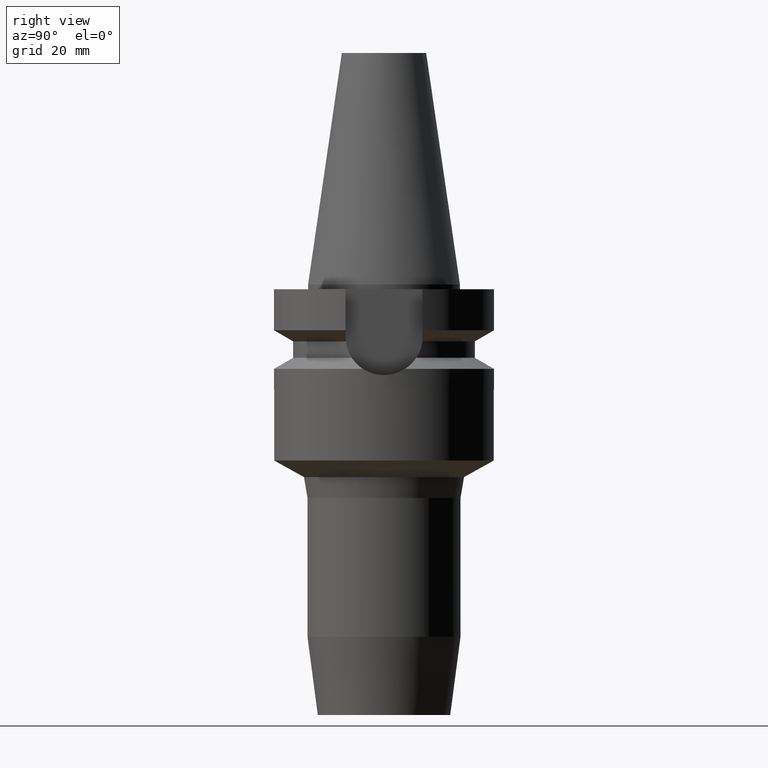
[diagram: clean part render]
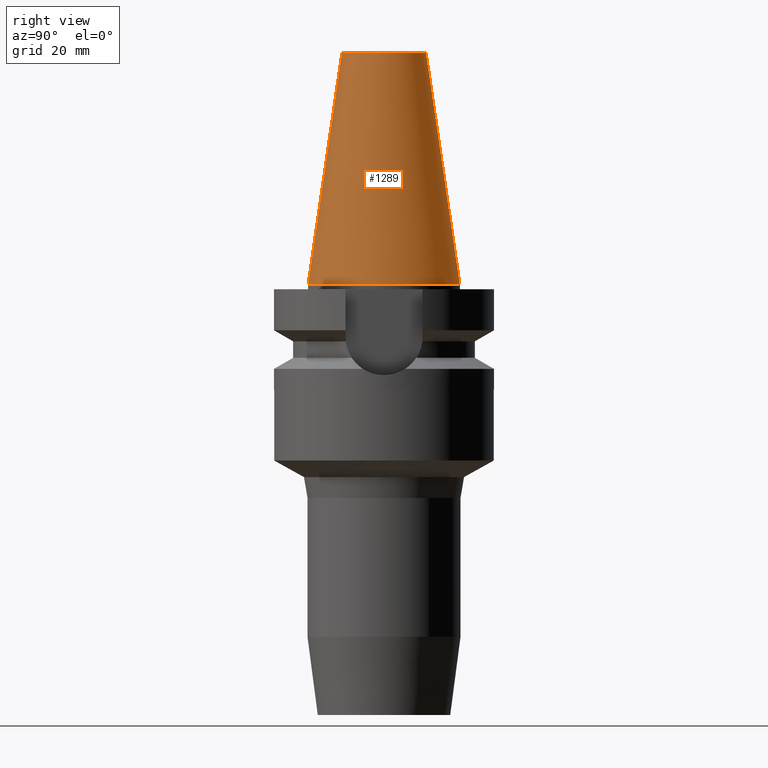
[diagram: same view with one face highlighted and labeled with its STEP entity id]
A machine part, right view. The second image highlights one B-rep face of the part: STEP entity #1289.
In plain terms, the highlighted conical surface has half-angle 8.297 deg.
Its self-contained STEP definition (entity closure, byte-faithful):
#17=DIRECTION('',(0.E0,1.443043893540E-1,-9.895333461856E-1));
#18=VECTOR('',#17,4.891194438931E1);
#19=CARTESIAN_POINT('',(0.E0,8.816791732783E0,4.84E1));
#20=LINE('',#19,#18);
#25=CARTESIAN_POINT('',(0.E0,1.521011324541E-14,-3.694822225953E-13));
#26=DIRECTION('',(0.E0,0.E0,-1.E0));
#27=DIRECTION('',(0.E0,1.E0,0.E0));
#28=AXIS2_PLACEMENT_3D('',#25,#26,#27);
#33=DIRECTION('',(0.E0,-1.443043893540E-1,-9.895333461856E-1));
#34=VECTOR('',#33,4.891194438931E1);
#35=CARTESIAN_POINT('',(0.E0,-8.816791732783E0,4.84E1));
#36=LINE('',#35,#34);
#56=CARTESIAN_POINT('',(0.E0,1.521011324541E-14,4.84E1));
#57=DIRECTION('',(0.E0,0.E0,-1.E0));
#58=DIRECTION('',(0.E0,1.E0,0.E0));
#59=AXIS2_PLACEMENT_3D('',#56,#57,#58);
#1110=CARTESIAN_POINT('',(0.E0,8.816791732783E0,4.84E1));
#1111=CARTESIAN_POINT('',(0.E0,1.5875E1,-1.776356839400E-13));
#1112=VERTEX_POINT('',#1110);
#1113=VERTEX_POINT('',#1111);
#1114=CARTESIAN_POINT('',(0.E0,-1.5875E1,-3.694822225953E-13));
#1115=VERTEX_POINT('',#1114);
#1116=CARTESIAN_POINT('',(0.E0,-8.816791732783E0,4.84E1));
#1117=VERTEX_POINT('',#1116);
#1274=CARTESIAN_POINT('',(0.E0,1.521011324541E-14,2.42E1));
#1275=DIRECTION('',(0.E0,0.E0,-1.E0));
#1276=DIRECTION('',(0.E0,-1.E0,0.E0));
#1277=AXIS2_PLACEMENT_3D('',#1274,#1275,#1276);
#1278=CONICAL_SURFACE('',#1277,1.234589586639E1,8.297E0);
#1280=ORIENTED_EDGE('',*,*,#1279,.T.);
#1282=ORIENTED_EDGE('',*,*,#1281,.T.);
#1284=ORIENTED_EDGE('',*,*,#1283,.F.);
#1286=ORIENTED_EDGE('',*,*,#1285,.F.);
#1287=EDGE_LOOP('',(#1280,#1282,#1284,#1286));
#1288=FACE_OUTER_BOUND('',#1287,.F.);
#29=CIRCLE('',#28,1.5875E1);
#60=CIRCLE('',#59,8.816791732783E0);
#1279=EDGE_CURVE('',#1112,#1113,#20,.T.);
#1281=EDGE_CURVE('',#1113,#1115,#29,.T.);
#1283=EDGE_CURVE('',#1117,#1115,#36,.T.);
#1285=EDGE_CURVE('',#1112,#1117,#60,.T.);
#1289=ADVANCED_FACE('',(#1288),#1278,.T.);